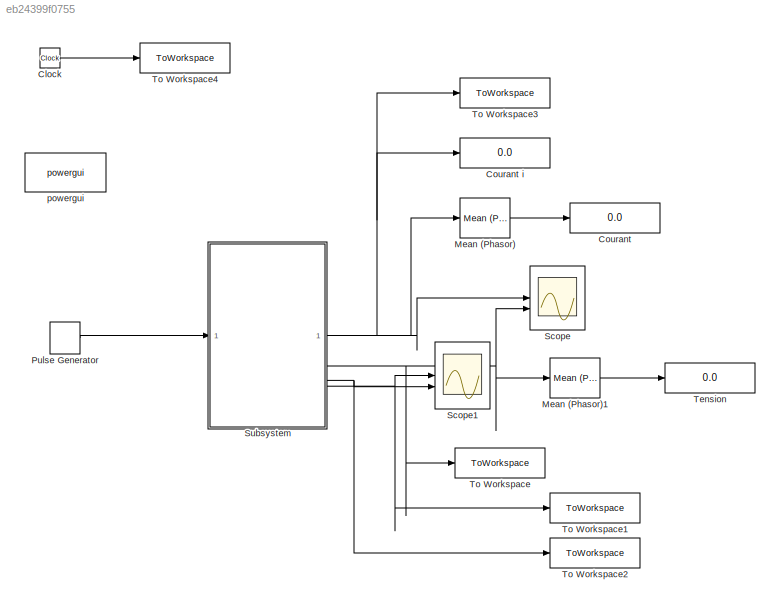
MODEL slx_eb24399f0755
KIND model
CONFIG AbsTol = auto
CONFIG EnableMultiTasking = off
CONFIG FixedStep = auto
CONFIG MaxStep = 1e-3
CONFIG MinStep = auto
CONFIG RelTol = 1e-4
CONFIG SampleTimeConstraint = Unconstrained
CONFIG SolverName = ode45
CONFIG StartTime = 0.0
CONFIG StopTime = 0.3
BLOCK [Clock] Clock
BLOCK [Display] Courant
  Decimation = 1
BLOCK [Display] Courant i
  Decimation = 1
BLOCK [Reference] Mean (Phasor)  REF=spsMeanPhasorLib/Mean
(Phasor)
  LibrarySourceBlock = sps_lib/Sensors and Measurements/Mean\n(Phasor)
  SourceBlock = spsMeanPhasorLib/Mean\n(Phasor)
  SourceType = Mean (Phasor)
BLOCK [Reference] Mean (Phasor)1  REF=spsMeanPhasorLib/Mean
(Phasor)
  LibrarySourceBlock = sps_lib/Sensors and Measurements/Mean\n(Phasor)
  SourceBlock = spsMeanPhasorLib/Mean\n(Phasor)
  SourceType = Mean (Phasor)
BLOCK [DiscretePulseGenerator] Pulse Generator
  Period = T
  PulseType = Time based
  PulseWidth = alpha
BLOCK [Scope] Scope
  Floating = off
  NumInputPorts = 2
  ScopeSpecificationString = Simulink.scopes.TimeScopeBlockCfg('CurrentConfiguration', extmgr.ConfigurationSet(extmgr.Configuration('Core','General UI',true),extmgr.Configuration('Core','Source UI',true),extmgr.Configuration('Sources','WiredSimulink',true),extmgr.Configuration('Visuals','Time Domain',true,'SerializedDisplays',{struct('MinYLimReal','2.3469','MaxYLimReal','2.46347','YLabelReal','','MinYLimMag','2.3469','MaxYLim...<+2217ch>
BLOCK [Scope] Scope1
  Floating = off
  NumInputPorts = 2
  ScopeSpecificationString = Simulink.scopes.TimeScopeBlockCfg('CurrentConfiguration', extmgr.ConfigurationSet(extmgr.Configuration('Core','General UI',true),extmgr.Configuration('Core','Source UI',true),extmgr.Configuration('Sources','WiredSimulink',true,'DataLoggingVariableName','ScopeData1'),extmgr.Configuration('Visuals','Time Domain',true,'SerializedDisplays',{struct('MinYLimReal','2.17455','MaxYLimReal','2.7084','YLabel...<+2253ch>
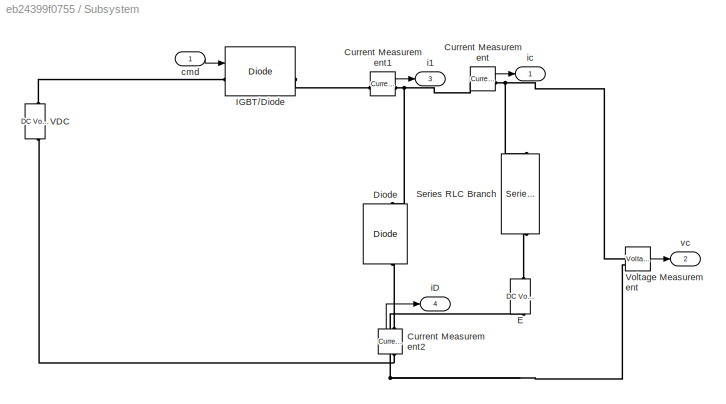
BLOCK [SubSystem] Subsystem
BLOCK [Reference] Subsystem/Current Measurement  REF=spsCurrentMeasurementLib/Current Measurement
  LibrarySourceBlock = sps_lib/Sensors and Measurements/Current Measurement
  SourceBlock = spsCurrentMeasurementLib/Current Measurement
  SourceType = Current Measurement
  UserDataPersistent = on
BLOCK [Reference] Subsystem/Current Measurement1  REF=spsCurrentMeasurementLib/Current Measurement
  LibrarySourceBlock = sps_lib/Sensors and Measurements/Current Measurement
  SourceBlock = spsCurrentMeasurementLib/Current Measurement
  SourceType = Current Measurement
  UserDataPersistent = on
BLOCK [Reference] Subsystem/Current Measurement2  REF=spsCurrentMeasurementLib/Current Measurement
  LibrarySourceBlock = sps_lib/Sensors and Measurements/Current Measurement
  NameLocation = left
  SourceBlock = spsCurrentMeasurementLib/Current Measurement
  SourceType = Current Measurement
  UserDataPersistent = on
BLOCK [Reference] Subsystem/Diode  REF=spsDiodeLib/Diode
  LibrarySourceBlock = sps_lib/Power Electronics/Diode
  NameLocation = right
  SourceBlock = spsDiodeLib/Diode
  SourceType = Diode
BLOCK [Reference] Subsystem/E  REF=spsDCVoltageSourceLib/DC Voltage Source
  LibrarySourceBlock = sps_lib/Sources/DC Voltage Source
  SourceBlock = spsDCVoltageSourceLib/DC Voltage Source
  SourceType = DC Voltage Source
BLOCK [Reference] Subsystem/IGBT//Diode  REF=spsIGBTDiodeLib/IGBT//Diode
  LibrarySourceBlock = sps_lib/Power Electronics/IGBT//Diode
  SourceBlock = spsIGBTDiodeLib/IGBT//Diode
  SourceType = IGBT/Diode
BLOCK [Reference] Subsystem/Series RLC Branch  REF=spsSeriesRLCBranchLib/Series RLC Branch
  LibrarySourceBlock = sps_lib/Passives/Series RLC Branch
  NameLocation = left
  SourceBlock = spsSeriesRLCBranchLib/Series RLC Branch
  SourceType = Series RLC Branch
BLOCK [Reference] Subsystem/VDC  REF=spsDCVoltageSourceLib/DC Voltage Source
  LibrarySourceBlock = sps_lib/Sources/DC Voltage Source
  SourceBlock = spsDCVoltageSourceLib/DC Voltage Source
  SourceType = DC Voltage Source
BLOCK [Reference] Subsystem/Voltage Measurement  REF=spsVoltageMeasurementLib/Voltage Measurement
  LibrarySourceBlock = sps_lib/Sensors and Measurements/Voltage Measurement
  SourceBlock = spsVoltageMeasurementLib/Voltage Measurement
  SourceType = Voltage Measurement
  UserDataPersistent = on
BLOCK [Inport] Subsystem/cmd
BLOCK [Outport] Subsystem/i1
  Port = 3
BLOCK [Outport] Subsystem/iD
  Port = 4
BLOCK [Outport] Subsystem/ic
BLOCK [Outport] Subsystem/vc
  Port = 2
BLOCK [Display] Tension
  Decimation = 1
BLOCK [ToWorkspace] To Workspace
  FixptAsFi = on
  MaxDataPoints = inf
  SampleTime = -1
  VariableName = V
BLOCK [ToWorkspace] To Workspace1
  FixptAsFi = on
  MaxDataPoints = inf
  SampleTime = -1
  VariableName = Ic
BLOCK [ToWorkspace] To Workspace2
  FixptAsFi = on
  MaxDataPoints = inf
  SampleTime = -1
  VariableName = Id
BLOCK [ToWorkspace] To Workspace3
  FixptAsFi = on
  MaxDataPoints = inf
  SampleTime = -1
  VariableName = I
BLOCK [ToWorkspace] To Workspace4
  FixptAsFi = on
  MaxDataPoints = inf
  SampleTime = -1
  VariableName = t
BLOCK [Reference] powergui  REF=sps_lib/powergui
  LibrarySourceBlock = sps_lib/powergui
  Priority = 1
  SourceBlock = sps_lib/powergui
  SourceType = PSB option menu block
LINE Clock:1 -> To Workspace4:1
LINE Mean (Phasor)1:1 -> Tension:1
LINE Mean (Phasor):1 -> Courant:1
LINE Pulse Generator:1 -> Subsystem:1
LINE Subsystem/Current Measurement1:1 -> Subsystem/i1:1
LINE Subsystem/Current Measurement2:1 -> Subsystem/iD:1
LINE Subsystem/Current Measurement:1 -> Subsystem/ic:1
LINE Subsystem/Voltage Measurement:1 -> Subsystem/vc:1
LINE Subsystem/cmd:1 -> Subsystem/IGBT//Diode:1
NET Subsystem:1 -> Courant i:1, Mean (Phasor):1, Scope:1, To Workspace3:1
NET Subsystem:2 -> Mean (Phasor)1:1, Scope:2, To Workspace:1
NET Subsystem:3 -> Scope1:1, To Workspace1:1
NET Subsystem:4 -> Scope1:2, To Workspace2:1
PLINE Subsystem/Current Measurement1:LConn1 -- Subsystem/IGBT//Diode:RConn1
PNET net1: Subsystem/Current Measurement1:RConn1 -- Subsystem/Current Measurement:LConn1 -- Subsystem/Diode:RConn1
PNET net2: Subsystem/Current Measurement2:LConn1 -- Subsystem/E:LConn1 -- Subsystem/VDC:LConn1 -- Subsystem/Voltage Measurement:LConn2
PLINE Subsystem/Current Measurement2:RConn1 -- Subsystem/Diode:LConn1
PNET net3: Subsystem/Current Measurement:RConn1 -- Subsystem/Series RLC Branch:LConn1 -- Subsystem/Voltage Measurement:LConn1
PLINE Subsystem/E:RConn1 -- Subsystem/Series RLC Branch:RConn1
PLINE Subsystem/IGBT//Diode:LConn1 -- Subsystem/VDC:RConn1
note: NET lines group one-source signal fan-out (src -> all destinations, sorted); 1:1 wires keep LINE; PNET lines group multi-terminal physical nets as a canonical sorted terminal list (undirected conserving connections); 2-terminal nets keep the pairwise PLINE form
